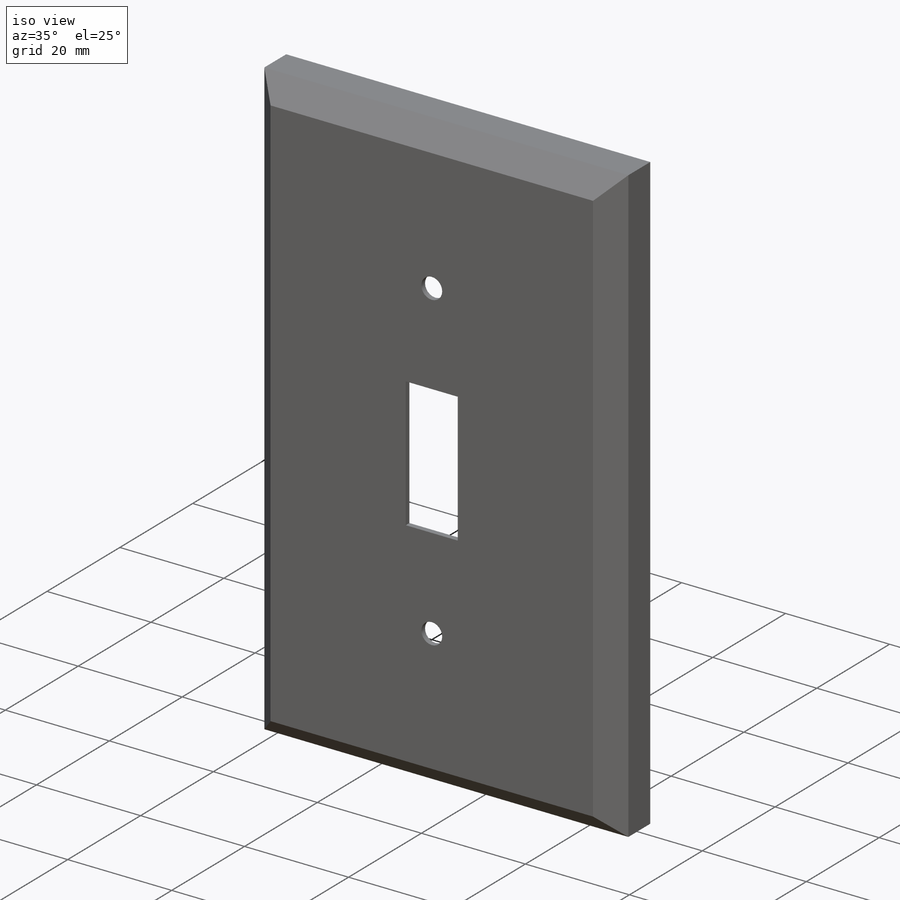
[diagram: iso view]
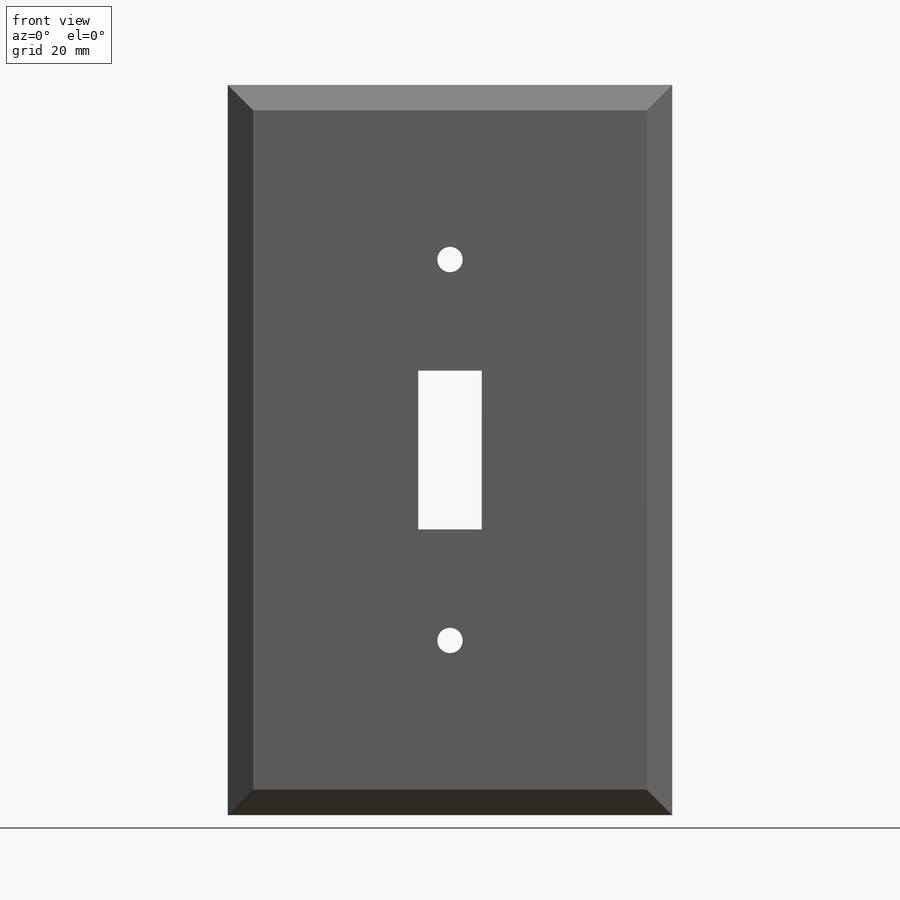
[diagram: front view]
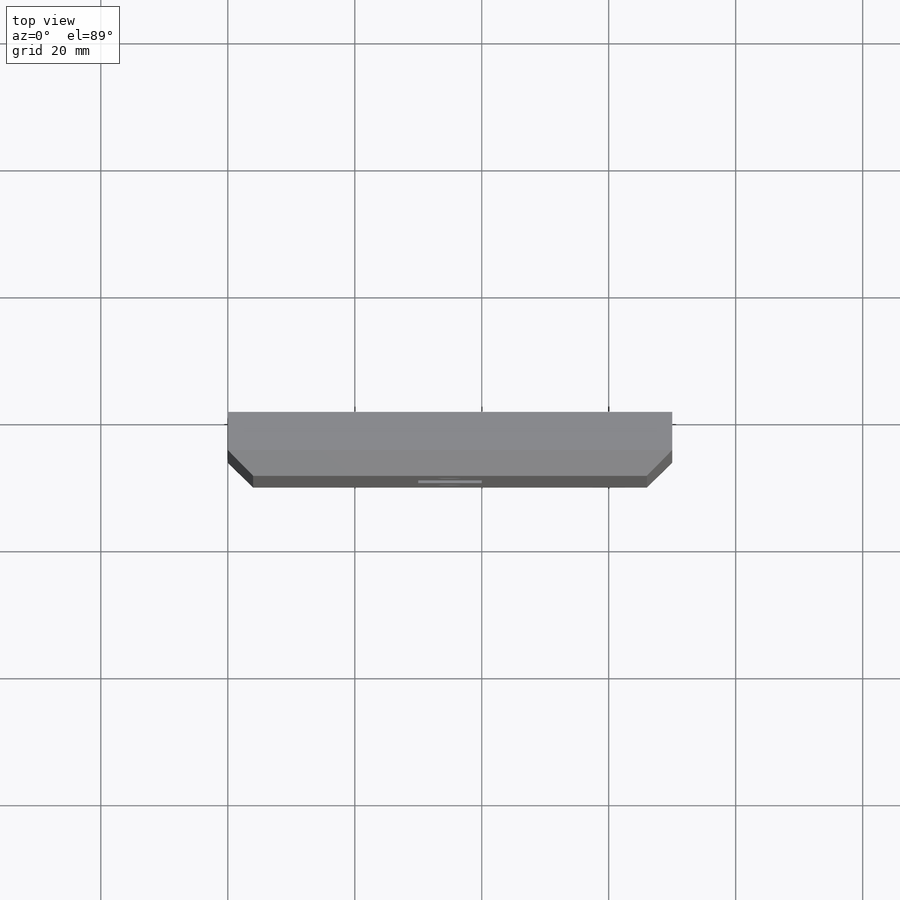
[diagram: top view]
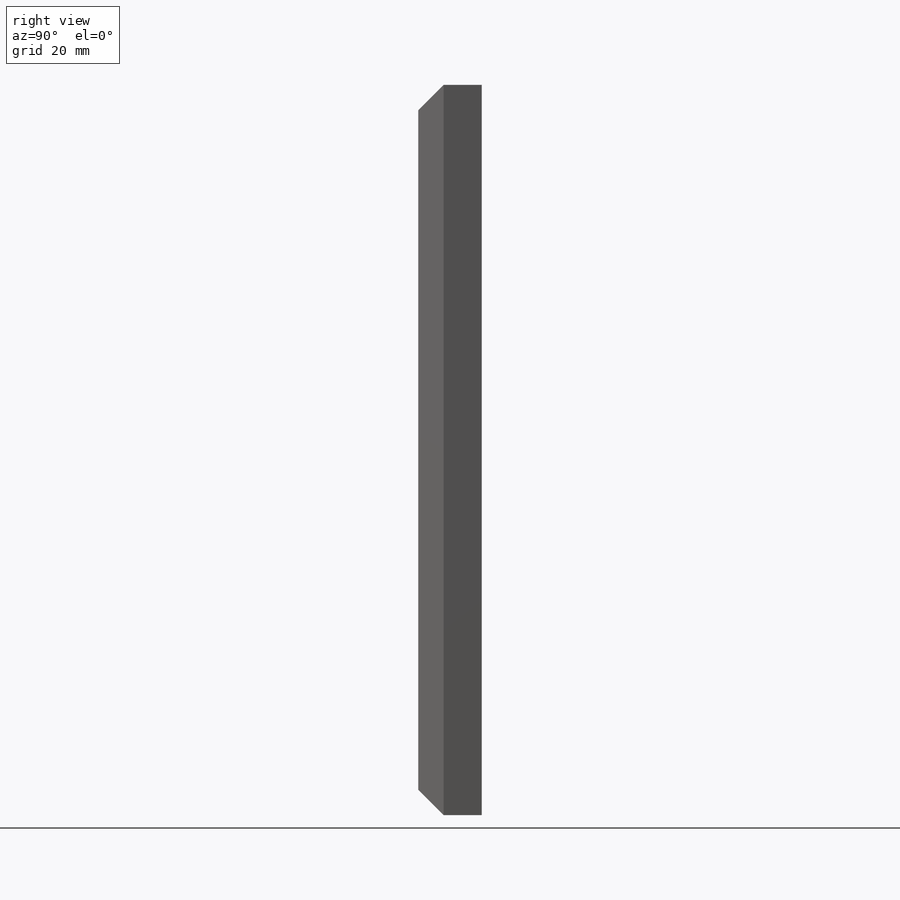
[diagram: right view]
SOLIDWORKS PART (.sldprt)
format: sldprt  version: not decoded by parser v0  size: 177,664 bytes
history: native  units: mm
features: plane x3, sketch x2, material x1, extrude x1, chamfer x1, shell x1, cut_extrude x1 (+10 scaffold rows collapsed)
feature tree (20):
  scaffold x10  (default folders/planes/origin — collapsed)
  material  "Materiál <není určen>"
  plane  "Přední rovina"
  plane  "Horní rovina"
  plane  "Pravá rovina"
  sketch  "Skica1"  dims[D1=115.0mm D2=70.0mm]
  extrude  "Vysunout1"  Depth=10mm
  chamfer  "Zkosit1"  Distance=4mm Angle=45deg
  shell  "Skořepina1"  Thickness=1mm
  sketch  "Skica3"  dims[D3=4.0mm D1=10.0mm D2=25.0mm D4=60.0mm]
  cut_extrude  "Odebrat vysunutím1"  [1 undecoded]
decode coverage: 5 of 6 modeling features carry decoded parameters
note: 1 parameter value undecoded
note: suppression state not decoded; provenance and decode notes live in map.json
